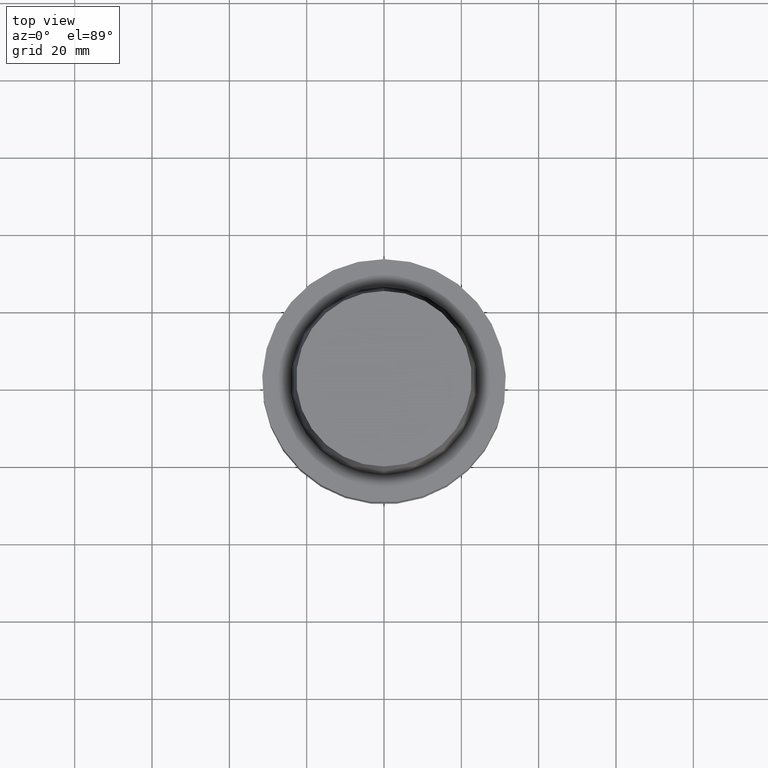
[diagram: clean part render]
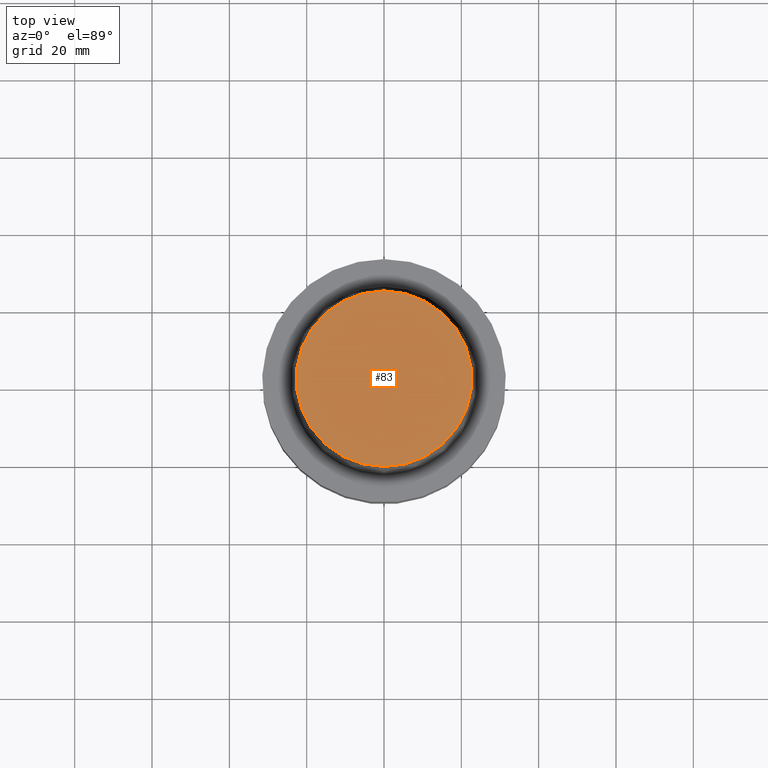
[diagram: same view with one face highlighted and labeled with its STEP entity id]
A machine part, top view. The second image highlights one B-rep face of the part: STEP entity #83.
In plain terms, the highlighted planar face has unit normal (-0, -0, 1).
Its self-contained STEP definition (entity closure, byte-faithful):
#83=ADVANCED_FACE('',(#119),#120,.T.);
#119=FACE_OUTER_BOUND('',#177,.T.);
#120=PLANE('',#178);
#177=EDGE_LOOP('',(#251));
#178=AXIS2_PLACEMENT_3D('',#252,#253,#254);
#251=ORIENTED_EDGE('',*,*,#318,.F.);
#252=CARTESIAN_POINT('',(-1.95943487863577E-015,11.3574999984407,32.0));
#253=DIRECTION('',(-6.12323399573677E-017,-1.22464679914735E-016,1.0));
#254=DIRECTION('',(1.23259516440783E-032,-1.0,-1.22464679914735E-016));
#318=EDGE_CURVE('',#345,#345,#346,.T.);
#345=VERTEX_POINT('',#383);
#346=CIRCLE('',#384,22.7149999968815);
#383=CARTESIAN_POINT('',(-1.95943487863577E-015,22.7149999968815,32.0));
#384=AXIS2_PLACEMENT_3D('',#429,#430,#431);
#429=CARTESIAN_POINT('',(-1.95943487863577E-015,-3.91886975727153E-015,32.0));
#430=DIRECTION('',(6.12323399573677E-017,1.22464679914735E-016,-1.0));
#431=DIRECTION('',(-1.23259516440783E-032,1.0,1.22464679914735E-016));